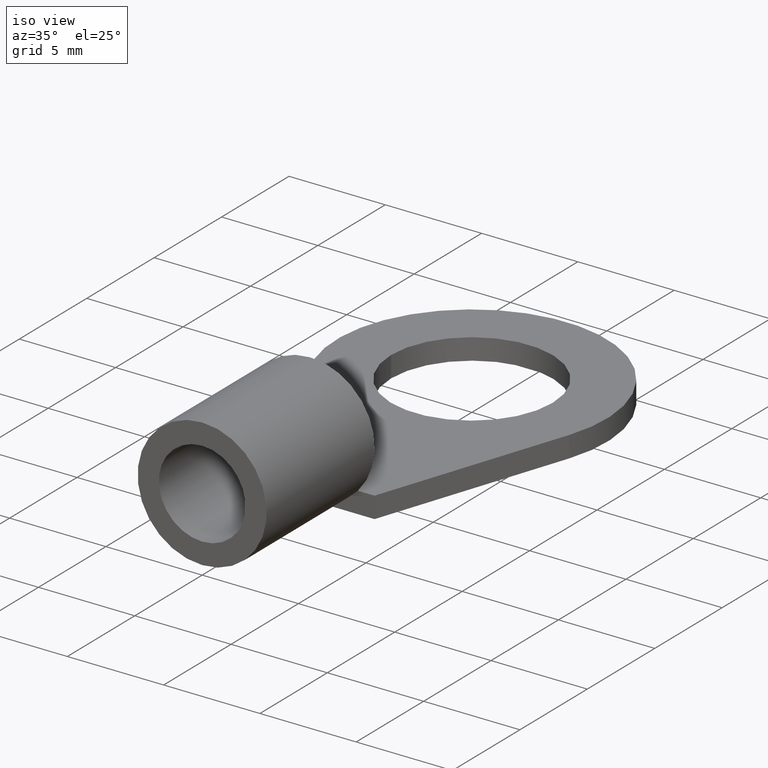
[diagram: clean part render]
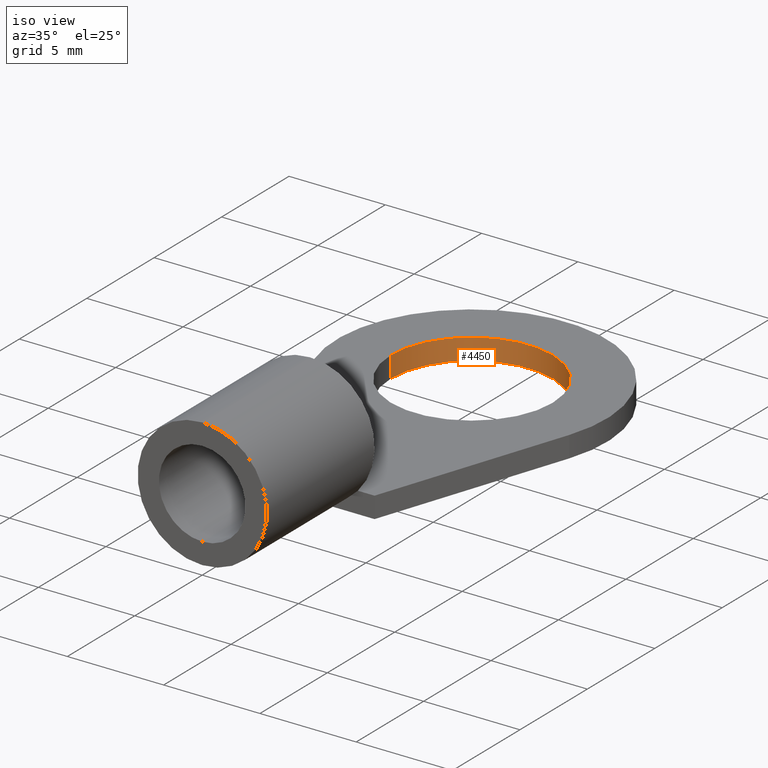
[diagram: same view with one face highlighted and labeled with its STEP entity id]
A machine part, iso view. The second image highlights one B-rep face of the part: STEP entity #4450.
In plain terms, the highlighted cylindrical surface (partial cylindrical patch) has radius 4.2 mm, axis along (-0, 0, 1).
Its self-contained STEP definition (entity closure, byte-faithful):
#60=CARTESIAN_POINT('',(8.19005203267263,213.892070784723,
128.194183483172));
#70=DIRECTION('',(-5.91634389396356E-9,0.169437138749457,
-0.985540996616781));
#80=VECTOR('',#70,1.);
#90=LINE('',#60,#80);
#100=CARTESIAN_POINT('',(8.19005203267263,213.892070784724,
128.194183483171));
#110=VERTEX_POINT('',#100);
#120=CARTESIAN_POINT('',(8.19005202616465,214.078451637348,
127.110088386893));
#130=VERTEX_POINT('',#120);
#140=EDGE_CURVE('',#110,#130,#90,.T.);
#160=CARTESIAN_POINT('',(7.55918008076447,209.986141658308,
126.406526290164));
#170=DIRECTION('',(-5.91634389396356E-9,0.169437138749457,
-0.985540996616781));
#180=DIRECTION('',(0.150207606047662,0.974359518819137,0.167514784935453
));
#190=AXIS2_PLACEMENT_3D('',#160,#170,#180);
#200=CIRCLE('',#190,4.2);
#210=CARTESIAN_POINT('',(6.92830813536429,205.893831679267,
125.702964193435));
#220=VERTEX_POINT('',#210);
#250=CARTESIAN_POINT('',(6.92830814187227,205.707450826643,
126.787059289714));
#260=DIRECTION('',(-5.91634389396356E-9,0.169437138749457,
-0.985540996616781));
#270=VECTOR('',#260,1.);
#280=LINE('',#250,#270);
#290=CARTESIAN_POINT('',(6.92830814187227,205.707450826643,
126.787059289713));
#300=VERTEX_POINT('',#290);
#310=EDGE_CURVE('',#300,#220,#280,.T.);
#330=CARTESIAN_POINT('',(7.55918008727245,209.799760805683,
127.490621386442));
#340=DIRECTION('',(-5.91634389396356E-9,0.169437138749457,
-0.985540996616781));
#350=DIRECTION('',(0.150207606047662,0.974359518819137,0.167514784935453
));
#360=AXIS2_PLACEMENT_3D('',#330,#340,#350);
#370=CIRCLE('',#360,4.2);
#940=EDGE_CURVE('',#110,#300,#370,.T.);
#1630=EDGE_CURVE('',#130,#220,#200,.T.);
#4340=CARTESIAN_POINT('',(7.55918008727245,209.799760805683,
127.490621386443));
#4350=DIRECTION('',(-5.91634389396356E-9,0.169437138749457,
-0.985540996616781));
#4360=DIRECTION('',(0.150207606047662,0.974359518819137,
0.167514784935453));
#4370=AXIS2_PLACEMENT_3D('',#4340,#4350,#4360);
#4380=CYLINDRICAL_SURFACE('',#4370,4.2);
#4390=ORIENTED_EDGE('',*,*,#940,.F.);
#4400=ORIENTED_EDGE('',*,*,#310,.F.);
#4410=ORIENTED_EDGE('',*,*,#1630,.T.);
#4420=ORIENTED_EDGE('',*,*,#140,.T.);
#4430=EDGE_LOOP('',(#4420,#4410,#4400,#4390));
#4440=FACE_OUTER_BOUND('',#4430,.T.);
#4450=ADVANCED_FACE('',(#4440),#4380,.F.);